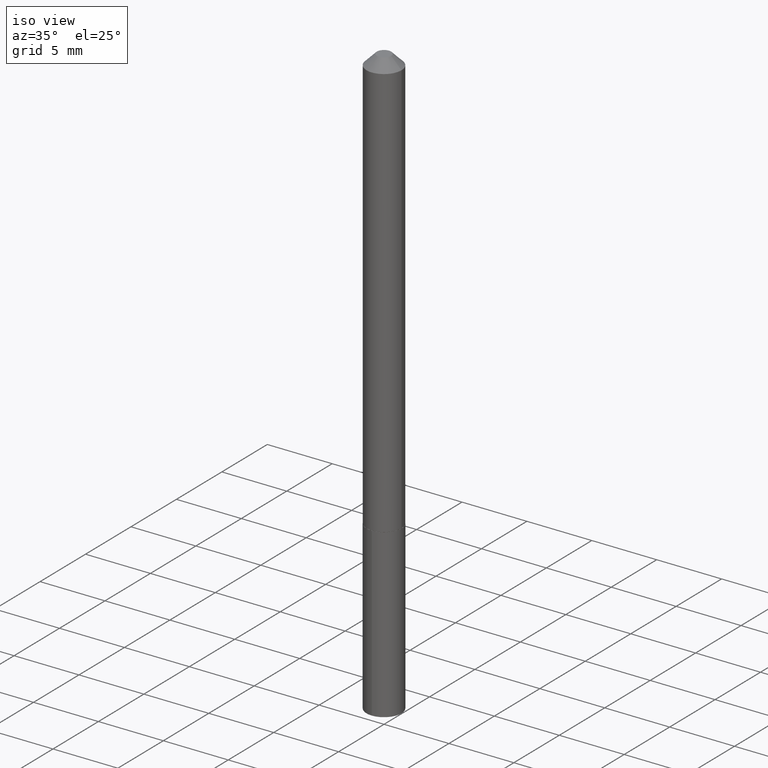
[diagram: clean part render]
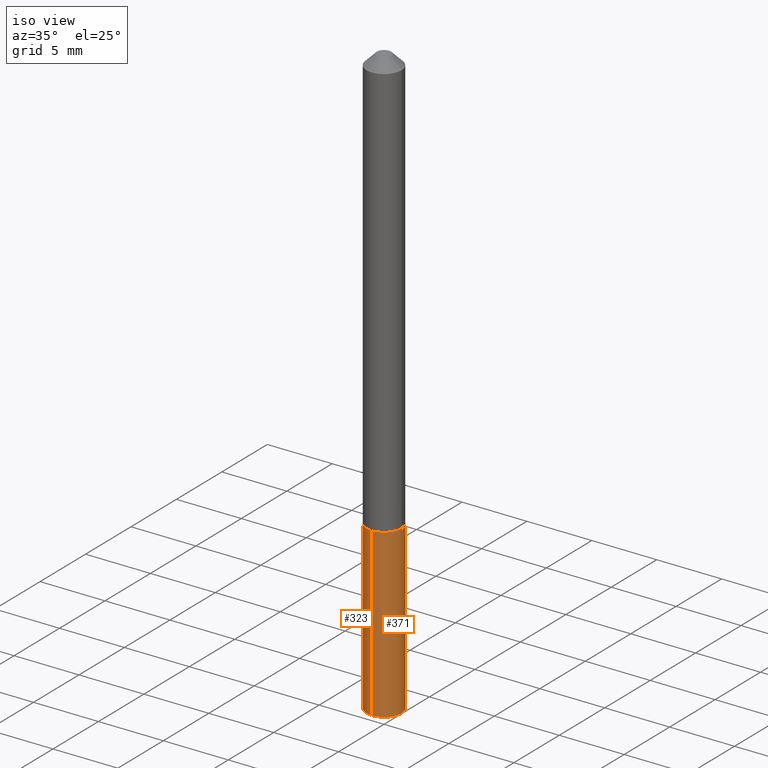
[diagram: same view with one multi-face feature highlighted, each face labeled with its STEP entity id]
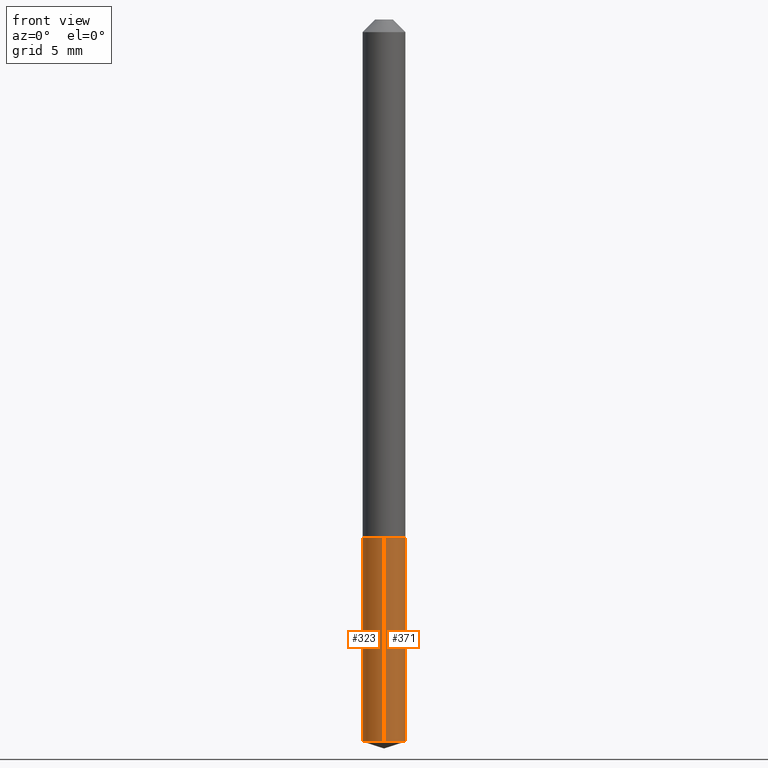
[diagram: same view with one multi-face feature highlighted, each face labeled with its STEP entity id]
A machine part, iso view. The highlighted faces form ONE feature: a constant-radius fillet chain: 2 tangent blend faces with common blend radius 1.35 mm. The faces share edges in the B-rep.
A second angle (front view) of the same feature is appended — it is thin or edge-on in the first view.
Their STEP definitions:
[1] entity #371 (Cylinder):
#7 = DIRECTION ( 'NONE',  ( -2.445499432379948463E-29, 3.491437480389040413E-15, 1.000000000000000000 ) ) ;
#12 = EDGE_CURVE ( 'NONE', #233, #139, #146, .T. ) ;
#13 = ORIENTED_EDGE ( 'NONE', *, *, #12, .T. ) ;
#16 = DIRECTION ( 'NONE',  ( -2.445499432379948463E-29, 3.491437480389040413E-15, 1.000000000000000000 ) ) ;
#21 = LINE ( 'NONE', #347, #52 ) ;
#36 = EDGE_CURVE ( 'NONE', #242, #350, #21, .T. ) ;
#52 = VECTOR ( 'NONE', #313, 39.37007874015748143 ) ;
#62 = EDGE_CURVE ( 'NONE', #242, #233, #99, .T. ) ;
#92 = ORIENTED_EDGE ( 'NONE', *, *, #62, .T. ) ;
#95 = AXIS2_PLACEMENT_3D ( 'NONE', #98, #7, #365 ) ;
#98 = CARTESIAN_POINT ( 'NONE',  ( 3.148296541082744135E-29, -4.494933075626664883E-15, -1.287399999999999878 ) ) ;
#99 = CIRCLE ( 'NONE', #259, 0.05315000000000000280 ) ;
#111 = EDGE_LOOP ( 'NONE', ( #92, #13, #384, #228 ) ) ;
#139 = VERTEX_POINT ( 'NONE', #281 ) ;
#140 = DIRECTION ( 'NONE',  ( -6.982962677686265922E-15, -1.000000000000000000, 5.139883337091746339E-15 ) ) ;
#144 = VECTOR ( 'NONE', #377, 39.37007874015748143 ) ;
#145 = DIRECTION ( 'NONE',  ( -6.982962677686265922E-15, -1.000000000000000000, 5.139883337091746339E-15 ) ) ;
#146 = LINE ( 'NONE', #252, #144 ) ;
#190 = CARTESIAN_POINT ( 'NONE',  ( 3.148296541082744135E-29, -4.494933075626664883E-15, -1.287399999999999878 ) ) ;
#217 = CYLINDRICAL_SURFACE ( 'NONE', #95, 0.05315000000000000280 ) ;
#225 = EDGE_CURVE ( 'NONE', #350, #139, #344, .T. ) ;
#226 = CARTESIAN_POINT ( 'NONE',  ( -3.711444663189813369E-16, -0.05315000000000629637, -1.794241869371081544 ) ) ;
#228 = ORIENTED_EDGE ( 'NONE', *, *, #36, .F. ) ;
#233 = VERTEX_POINT ( 'NONE', #275 ) ;
#242 = VERTEX_POINT ( 'NONE', #226 ) ;
#244 = DIRECTION ( 'NONE',  ( -2.445499432379948463E-29, 3.491437480389040413E-15, 1.000000000000000000 ) ) ;
#252 = CARTESIAN_POINT ( 'NONE',  ( 3.776534640565246752E-16, 0.05314999999999550639, -1.287400000000000100 ) ) ;
#257 = FACE_OUTER_BOUND ( 'NONE', #111, .T. ) ;
#259 = AXIS2_PLACEMENT_3D ( 'NONE', #297, #244, #140 ) ;
#275 = CARTESIAN_POINT ( 'NONE',  ( 3.776534640565372970E-16, 0.05314999999999375085, -1.794241869371081988 ) ) ;
#281 = CARTESIAN_POINT ( 'NONE',  ( 3.776534640565371984E-16, 0.05314999999999551333, -1.287400000000000100 ) ) ;
#288 = AXIS2_PLACEMENT_3D ( 'NONE', #190, #16, #145 ) ;
#297 = CARTESIAN_POINT ( 'NONE',  ( 4.387778044936117180E-29, -6.264539774979306472E-15, -1.794241869371081766 ) ) ;
#313 = DIRECTION ( 'NONE',  ( -2.445499432379948463E-29, 3.491437480389040413E-15, 1.000000000000000000 ) ) ;
#344 = CIRCLE ( 'NONE', #288, 0.05315000000000000280 ) ;
#347 = CARTESIAN_POINT ( 'NONE',  ( -3.711444663189935642E-16, -0.05315000000000449920, -1.287399999999999434 ) ) ;
#350 = VERTEX_POINT ( 'NONE', #359 ) ;
#359 = CARTESIAN_POINT ( 'NONE',  ( -3.711444663189935642E-16, -0.05315000000000449920, -1.287399999999999434 ) ) ;
#365 = DIRECTION ( 'NONE',  ( -6.982962677686265922E-15, -1.000000000000000000, 5.139883337091746339E-15 ) ) ;
#371 = ADVANCED_FACE ( 'NONE', ( #257 ), #217, .T. ) ;
#377 = DIRECTION ( 'NONE',  ( -2.445499432379948463E-29, 3.491437480389040413E-15, 1.000000000000000000 ) ) ;
#384 = ORIENTED_EDGE ( 'NONE', *, *, #225, .F. ) ;
[2] entity #323 (Cylinder):
#8 = EDGE_CURVE ( 'NONE', #233, #242, #215, .T. ) ;
#12 = EDGE_CURVE ( 'NONE', #233, #139, #146, .T. ) ;
#21 = LINE ( 'NONE', #347, #52 ) ;
#35 = AXIS2_PLACEMENT_3D ( 'NONE', #315, #382, #188 ) ;
#36 = EDGE_CURVE ( 'NONE', #242, #350, #21, .T. ) ;
#52 = VECTOR ( 'NONE', #313, 39.37007874015748143 ) ;
#73 = CARTESIAN_POINT ( 'NONE',  ( 3.148296541082744135E-29, -4.494933075626664883E-15, -1.287399999999999878 ) ) ;
#96 = DIRECTION ( 'NONE',  ( -6.982962677686265922E-15, -1.000000000000000000, 5.139883337091746339E-15 ) ) ;
#114 = ORIENTED_EDGE ( 'NONE', *, *, #12, .F. ) ;
#139 = VERTEX_POINT ( 'NONE', #281 ) ;
#144 = VECTOR ( 'NONE', #377, 39.37007874015748143 ) ;
#146 = LINE ( 'NONE', #252, #144 ) ;
#175 = ORIENTED_EDGE ( 'NONE', *, *, #8, .T. ) ;
#182 = ORIENTED_EDGE ( 'NONE', *, *, #36, .T. ) ;
#184 = DIRECTION ( 'NONE',  ( -2.445499432379948463E-29, 3.491437480389040413E-15, 1.000000000000000000 ) ) ;
#187 = AXIS2_PLACEMENT_3D ( 'NONE', #282, #184, #96 ) ;
#188 = DIRECTION ( 'NONE',  ( -6.982962677686265922E-15, -1.000000000000000000, 5.139883337091746339E-15 ) ) ;
#204 = EDGE_CURVE ( 'NONE', #139, #350, #381, .T. ) ;
#215 = CIRCLE ( 'NONE', #35, 0.05315000000000000280 ) ;
#226 = CARTESIAN_POINT ( 'NONE',  ( -3.711444663189813369E-16, -0.05315000000000629637, -1.794241869371081544 ) ) ;
#233 = VERTEX_POINT ( 'NONE', #275 ) ;
#242 = VERTEX_POINT ( 'NONE', #226 ) ;
#252 = CARTESIAN_POINT ( 'NONE',  ( 3.776534640565246752E-16, 0.05314999999999550639, -1.287400000000000100 ) ) ;
#275 = CARTESIAN_POINT ( 'NONE',  ( 3.776534640565372970E-16, 0.05314999999999375085, -1.794241869371081988 ) ) ;
#281 = CARTESIAN_POINT ( 'NONE',  ( 3.776534640565371984E-16, 0.05314999999999551333, -1.287400000000000100 ) ) ;
#282 = CARTESIAN_POINT ( 'NONE',  ( 3.148296541082744135E-29, -4.494933075626664883E-15, -1.287399999999999878 ) ) ;
#290 = FACE_OUTER_BOUND ( 'NONE', #332, .T. ) ;
#313 = DIRECTION ( 'NONE',  ( -2.445499432379948463E-29, 3.491437480389040413E-15, 1.000000000000000000 ) ) ;
#315 = CARTESIAN_POINT ( 'NONE',  ( 4.387778044936117180E-29, -6.264539774979306472E-15, -1.794241869371081766 ) ) ;
#323 = ADVANCED_FACE ( 'NONE', ( #290 ), #354, .T. ) ;
#326 = DIRECTION ( 'NONE',  ( -6.982962677686265922E-15, -1.000000000000000000, 5.139883337091746339E-15 ) ) ;
#332 = EDGE_LOOP ( 'NONE', ( #114, #175, #182, #388 ) ) ;
#347 = CARTESIAN_POINT ( 'NONE',  ( -3.711444663189935642E-16, -0.05315000000000449920, -1.287399999999999434 ) ) ;
#350 = VERTEX_POINT ( 'NONE', #359 ) ;
#352 = AXIS2_PLACEMENT_3D ( 'NONE', #73, #363, #326 ) ;
#354 = CYLINDRICAL_SURFACE ( 'NONE', #352, 0.05315000000000000280 ) ;
#359 = CARTESIAN_POINT ( 'NONE',  ( -3.711444663189935642E-16, -0.05315000000000449920, -1.287399999999999434 ) ) ;
#363 = DIRECTION ( 'NONE',  ( -2.445499432379948463E-29, 3.491437480389040413E-15, 1.000000000000000000 ) ) ;
#377 = DIRECTION ( 'NONE',  ( -2.445499432379948463E-29, 3.491437480389040413E-15, 1.000000000000000000 ) ) ;
#381 = CIRCLE ( 'NONE', #187, 0.05315000000000000280 ) ;
#382 = DIRECTION ( 'NONE',  ( -2.445499432379948463E-29, 3.491437480389040413E-15, 1.000000000000000000 ) ) ;
#388 = ORIENTED_EDGE ( 'NONE', *, *, #204, .F. ) ;